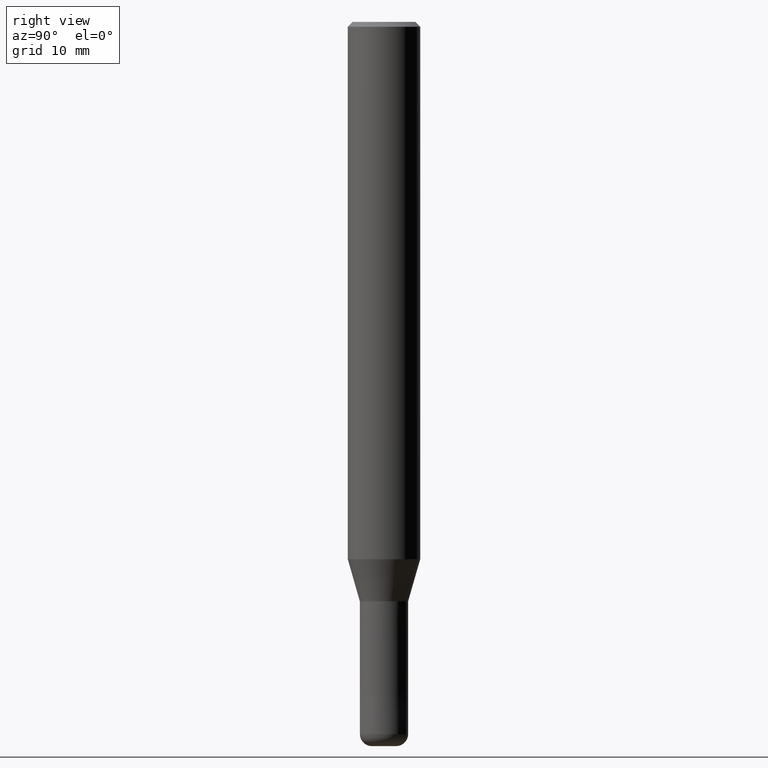
[diagram: clean part render]
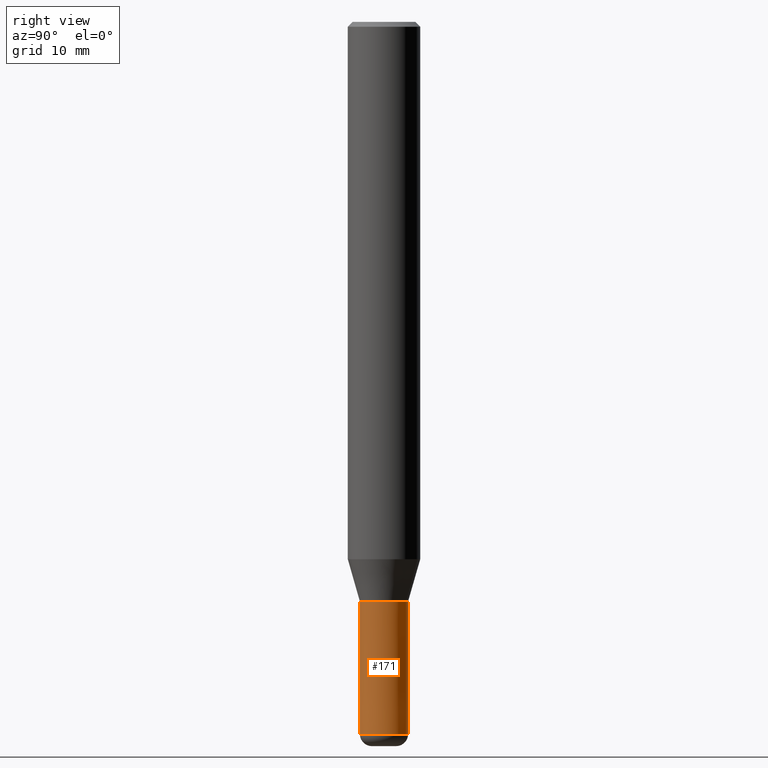
[diagram: same view with one face highlighted and labeled with its STEP entity id]
A machine part, right view. The second image highlights one B-rep face of the part: STEP entity #171.
In plain terms, the highlighted conical surface has half-angle 0.001 deg.
Its self-contained STEP definition (entity closure, byte-faithful):
#127=EDGE_CURVE('',#255,#181,#315,.T.);
#143=VERTEX_POINT('',#332);
#159=EDGE_CURVE('',#193,#255,#352,.T.);
#171=ADVANCED_FACE('',(#366),#367,.T.);
#181=VERTEX_POINT('',#377);
#193=VERTEX_POINT('',#390);
#231=EDGE_CURVE('',#143,#181,#437,.T.);
#247=EDGE_CURVE('',#143,#193,#454,.T.);
#255=VERTEX_POINT('',#463);
#315=LINE('',#522,#523);
#332=CARTESIAN_POINT('',(0.0,1.9999,-48.0));
#352=CIRCLE('',#571,2.0);
#366=FACE_OUTER_BOUND('',#586,.T.);
#367=CONICAL_SURFACE('',#587,1.99995,9.09090909065765E-006);
#377=CARTESIAN_POINT('',(2.44909024700937E-016,-1.9999,-48.0));
#390=CARTESIAN_POINT('',(0.0,2.0,-59.0));
#437=CIRCLE('',#674,1.9999);
#454=LINE('',#696,#697);
#463=CARTESIAN_POINT('',(2.44921270764476E-016,-2.0,-59.0));
#522=CARTESIAN_POINT('',(2.44915147732706E-016,-1.99995,-53.5));
#523=VECTOR('',#758,1.0);
#571=AXIS2_PLACEMENT_3D('',#814,#815,#816);
#586=EDGE_LOOP('',(#829,#830,#831,#832));
#587=AXIS2_PLACEMENT_3D('',#833,#834,#835);
#674=AXIS2_PLACEMENT_3D('',#930,#931,#932);
#696=CARTESIAN_POINT('',(-2.44915147732706E-016,1.99995,-53.5));
#697=VECTOR('',#948,1.0);
#758=DIRECTION('',(-1.11327850342876E-021,9.09090909053243E-006,0.999999999958678));
#814=CARTESIAN_POINT('',(0.0,0.0,-59.0));
#815=DIRECTION('',(0.0,0.0,-1.0));
#816=DIRECTION('',(0.0,1.0,0.0));
#829=ORIENTED_EDGE('',*,*,#247,.F.);
#830=ORIENTED_EDGE('',*,*,#231,.T.);
#831=ORIENTED_EDGE('',*,*,#127,.F.);
#832=ORIENTED_EDGE('',*,*,#159,.F.);
#833=CARTESIAN_POINT('',(0.0,0.0,-53.5));
#834=DIRECTION('',(0.0,-0.0,-1.0));
#835=DIRECTION('',(0.0,1.0,0.0));
#930=CARTESIAN_POINT('',(0.0,0.0,-48.0));
#931=DIRECTION('',(0.0,0.0,-1.0));
#932=DIRECTION('',(0.0,1.0,0.0));
#948=DIRECTION('',(-1.11327850342876E-021,9.09090909053243E-006,-0.999999999958678));